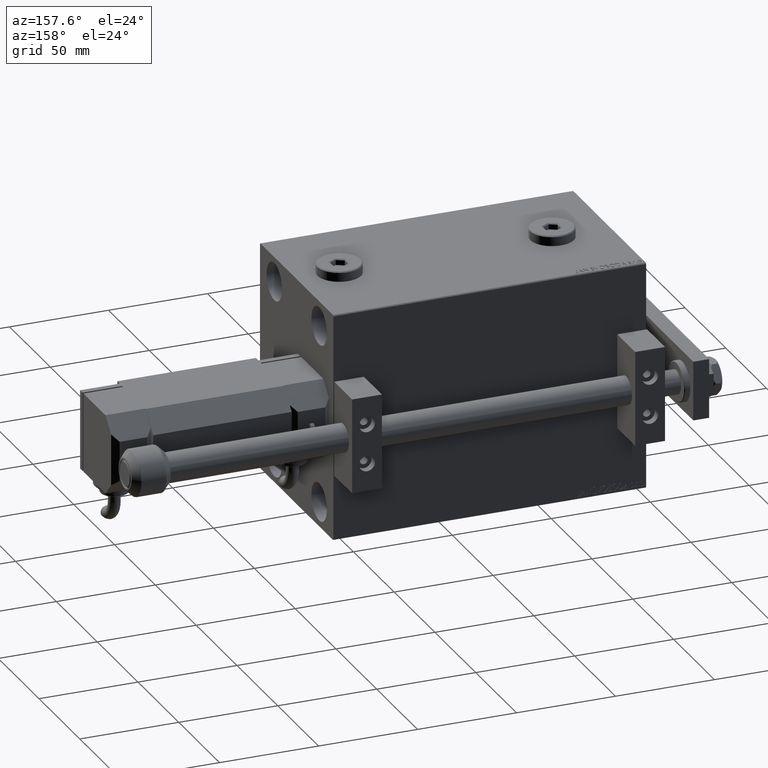
[diagram: clean part render]
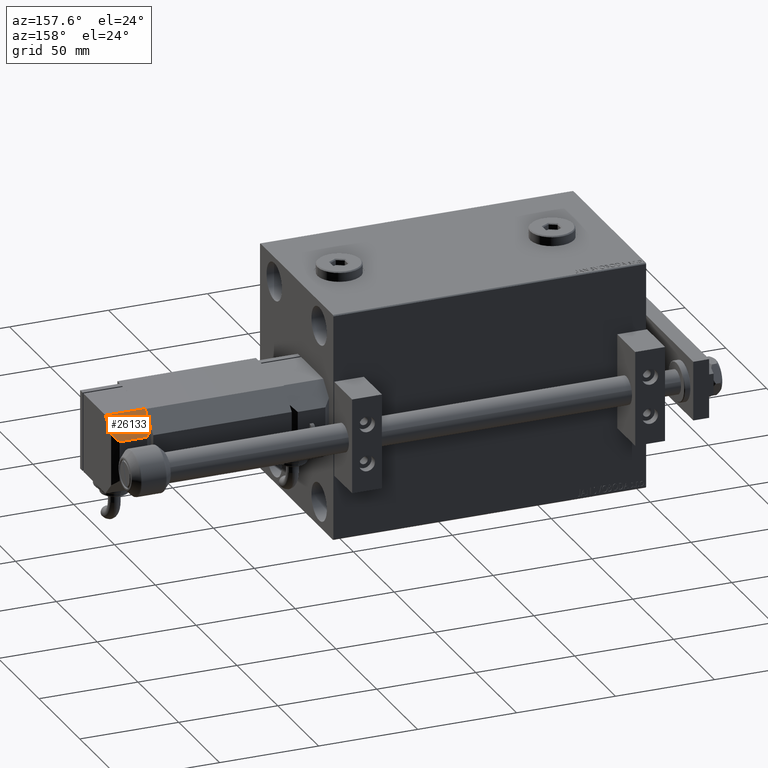
[diagram: same view with one face highlighted and labeled with its STEP entity id]
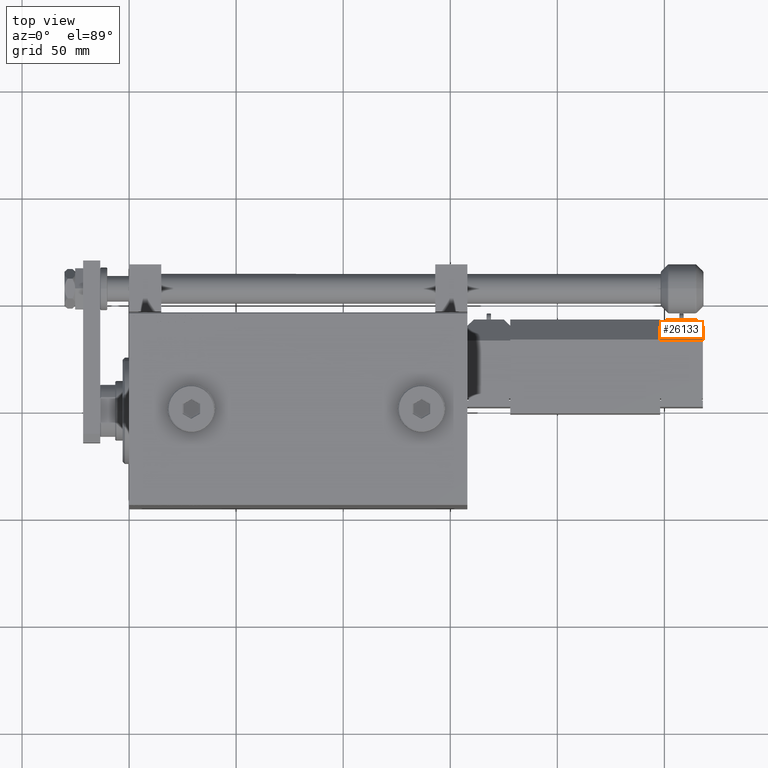
[diagram: same view with one face highlighted and labeled with its STEP entity id]
A machine part, auxiliary view. The second image highlights one B-rep face of the part: STEP entity #26133.
A second angle (top view) of the same face is appended — the face is thin or edge-on in the first view.
In plain terms, the highlighted planar face has unit normal (0, -0.7071, -0.7071).
Its self-contained STEP definition (entity closure, byte-faithful):
#943 = LINE ( 'NONE', #20536, #38512 ) ;
#961 = AXIS2_PLACEMENT_3D ( 'NONE', #21685, #1326, #1831 ) ;
#1123 = CARTESIAN_POINT ( 'NONE',  ( 12.99999999999999112, 20.50000000000009592, -10.00000000000000000 ) ) ;
#1326 = DIRECTION ( 'NONE',  ( -0.7071067811865471286, -0.7071067811865480168, 0.000000000000000000 ) ) ;
#1810 = VERTEX_POINT ( 'NONE', #51012 ) ;
#1831 = DIRECTION ( 'NONE',  ( 0.7071067811865479058, -0.7071067811865470176, 0.000000000000000000 ) ) ;
#5831 = LINE ( 'NONE', #44034, #37120 ) ;
#6156 = EDGE_LOOP ( 'NONE', ( #45740, #37675, #34996, #28704, #48597, #22369 ) ) ;
#6617 = VECTOR ( 'NONE', #46012, 999.9999999999998863 ) ;
#6630 = VERTEX_POINT ( 'NONE', #1123 ) ;
#8067 = VERTEX_POINT ( 'NONE', #39204 ) ;
#8880 = CARTESIAN_POINT ( 'NONE',  ( 9.999999999999984013, 23.50000000000009592, 10.00000000000000000 ) ) ;
#10758 = CARTESIAN_POINT ( 'NONE',  ( 20.00000000000005684, 13.50000000000003730, 10.00000000000000000 ) ) ;
#13553 = DIRECTION ( 'NONE',  ( -0.000000000000000000, -0.000000000000000000, -1.000000000000000000 ) ) ;
#13905 = VERTEX_POINT ( 'NONE', #10758 ) ;
#14512 = CARTESIAN_POINT ( 'NONE',  ( 8.666666666666658969, 24.83333333333341741, 5.666666666666664298 ) ) ;
#14930 = VECTOR ( 'NONE', #26309, 1000.000000000000114 ) ;
#19634 = EDGE_CURVE ( 'NONE', #13905, #1810, #20492, .T. ) ;
#20492 = LINE ( 'NONE', #8880, #26248 ) ;
#20536 = CARTESIAN_POINT ( 'NONE',  ( 3.333333333333287296, 30.16666666666678154, -0.3333333333333339255 ) ) ;
#21685 = CARTESIAN_POINT ( 'NONE',  ( 9.999999999999984013, 23.50000000000009592, 10.00000000000000000 ) ) ;
#22369 = ORIENTED_EDGE ( 'NONE', *, *, #50104, .T. ) ;
#23466 = VECTOR ( 'NONE', #49491, 1000.000000000000000 ) ;
#23544 = EDGE_CURVE ( 'NONE', #47908, #1810, #49882, .T. ) ;
#24615 = DIRECTION ( 'NONE',  ( -0.7071067811865479058, 0.7071067811865470176, -0.000000000000000000 ) ) ;
#25321 = EDGE_CURVE ( 'NONE', #27584, #6630, #42317, .T. ) ;
#26133 = ADVANCED_FACE ( 'NONE', ( #49303 ), #37420, .F. ) ;
#26248 = VECTOR ( 'NONE', #24615, 1000.000000000000114 ) ;
#26309 = DIRECTION ( 'NONE',  ( -0.7071067811865479058, 0.7071067811865470176, -0.000000000000000000 ) ) ;
#27584 = VERTEX_POINT ( 'NONE', #42778 ) ;
#28524 = DIRECTION ( 'NONE',  ( -0.5773502691896266192, 0.5773502691896259531, 0.5773502691896246208 ) ) ;
#28704 = ORIENTED_EDGE ( 'NONE', *, *, #23544, .T. ) ;
#30913 = CARTESIAN_POINT ( 'NONE',  ( 9.999999999999984013, 23.50000000000009592, 6.999999999999990230 ) ) ;
#32977 = EDGE_CURVE ( 'NONE', #47908, #8067, #49238, .T. ) ;
#34996 = ORIENTED_EDGE ( 'NONE', *, *, #32977, .F. ) ;
#37120 = VECTOR ( 'NONE', #13553, 1000.000000000000000 ) ;
#37420 = PLANE ( 'NONE',  #961 ) ;
#37675 = ORIENTED_EDGE ( 'NONE', *, *, #39550, .T. ) ;
#38173 = CARTESIAN_POINT ( 'NONE',  ( 9.999999999999984013, 23.50000000000009592, -10.00000000000000000 ) ) ;
#38512 = VECTOR ( 'NONE', #28524, 1000.000000000000227 ) ;
#39204 = CARTESIAN_POINT ( 'NONE',  ( 9.999999999999984013, 23.50000000000009592, -7.000000000000004441 ) ) ;
#39550 = EDGE_CURVE ( 'NONE', #6630, #8067, #943, .T. ) ;
#41497 = CARTESIAN_POINT ( 'NONE',  ( 9.999999999999984013, 23.50000000000009592, 10.00000000000000000 ) ) ;
#42317 = LINE ( 'NONE', #38173, #14930 ) ;
#42778 = CARTESIAN_POINT ( 'NONE',  ( 20.00000000000005684, 13.50000000000003730, -10.00000000000000000 ) ) ;
#44034 = CARTESIAN_POINT ( 'NONE',  ( 20.00000000000005684, 13.50000000000003730, 10.00000000000000000 ) ) ;
#45740 = ORIENTED_EDGE ( 'NONE', *, *, #25321, .T. ) ;
#46012 = DIRECTION ( 'NONE',  ( 0.5773502691896258421, -0.5773502691896250649, 0.5773502691896263972 ) ) ;
#47908 = VERTEX_POINT ( 'NONE', #30913 ) ;
#48597 = ORIENTED_EDGE ( 'NONE', *, *, #19634, .F. ) ;
#49238 = LINE ( 'NONE', #41497, #23466 ) ;
#49303 = FACE_OUTER_BOUND ( 'NONE', #6156, .T. ) ;
#49491 = DIRECTION ( 'NONE',  ( -0.000000000000000000, -0.000000000000000000, -1.000000000000000000 ) ) ;
#49882 = LINE ( 'NONE', #14512, #6617 ) ;
#50104 = EDGE_CURVE ( 'NONE', #13905, #27584, #5831, .T. ) ;
#51012 = CARTESIAN_POINT ( 'NONE',  ( 12.99999999999999112, 20.50000000000009592, 10.00000000000000000 ) ) ;